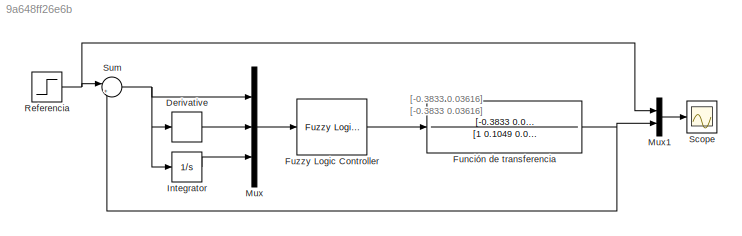
MODEL slx_9a648ff26e6b
KIND model
CONFIG AbsTol = auto
CONFIG EnableMultiTasking = off
CONFIG FixedStep = auto
CONFIG MaxStep = auto
CONFIG MinStep = auto
CONFIG RelTol = 1e-3
CONFIG SampleTimeConstraint = Unconstrained
CONFIG SolverName = VariableStepAuto
CONFIG StartTime = 0.0
CONFIG StopTime = 200
BLOCK [Derivative] Derivative
BLOCK [TransferFcn] Función de transferencia
  Denominator = [1 0.1049 0.0009934]
  Numerator = [-0.3833  0.03616]
BLOCK [Reference] Fuzzy Logic Controller  REF=fuzblock/Fuzzy Logic   (lib defined in mdl_858b3b3e7478)
Controller
  SourceBlock = fuzblock/Fuzzy Logic \nController
  SourceType = Fuzzy Inference System
BLOCK [Integrator] Integrator
BLOCK [Mux] Mux
  DisplayOption = bar
  Inputs = 3
BLOCK [Mux] Mux1
  DisplayOption = bar
  Inputs = 2
BLOCK [Step] Referencia
  After = 30
  SampleTime = 0
BLOCK [Scope] Scope
  Floating = off
  NumInputPorts = 1
  ScopeSpecificationString = Simulink.scopes.TimeScopeBlockCfg('CurrentConfiguration', extmgr.ConfigurationSet(extmgr.Configuration('Core','General UI',true),extmgr.Configuration('Core','Source UI',true),extmgr.Configuration('Sources','WiredSimulink',true),extmgr.Configuration('Visuals','Time Domain',true,'SerializedDisplays',{struct('MinYLimReal','-5.19344','MaxYLimReal','34.86396','YLabelReal','','MinYLimMag','0.00000','Max...<+1444ch>
BLOCK [Sum] Sum
  Inputs = |+-
ANNOTATION (root): [-0.3833 0.03616]
LINE Derivative:1 -> Mux:2
NET Función de transferencia:1 -> Mux1:2, Sum:2
LINE Fuzzy Logic Controller:1 -> Función de transferencia:1
LINE Integrator:1 -> Mux:3
LINE Mux1:1 -> Scope:1
LINE Mux:1 -> Fuzzy Logic Controller:1
NET Referencia:1 -> Mux1:1, Sum:1
NET Sum:1 -> Derivative:1, Integrator:1, Mux:1
note: NET lines group one-source signal fan-out (src -> all destinations, sorted); 1:1 wires keep LINE
